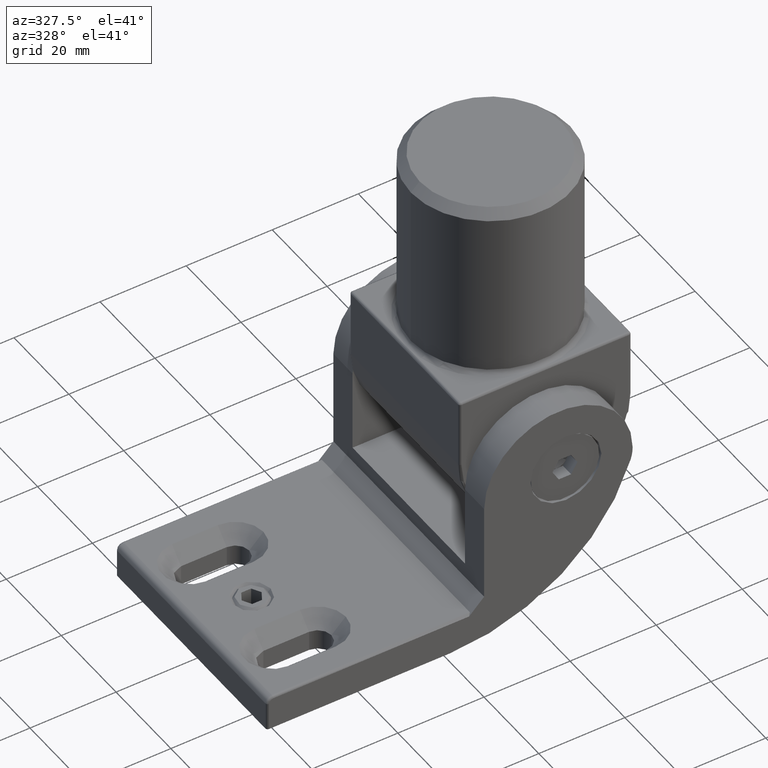
[diagram: clean part render]
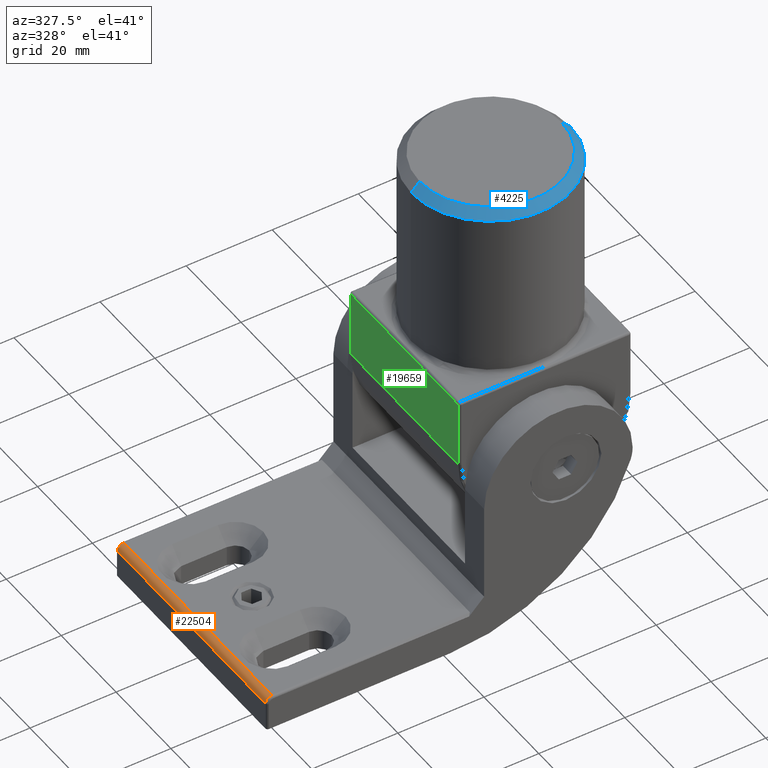
[diagram: same view with three faces highlighted in distinct colors, each labeled with its STEP entity id]
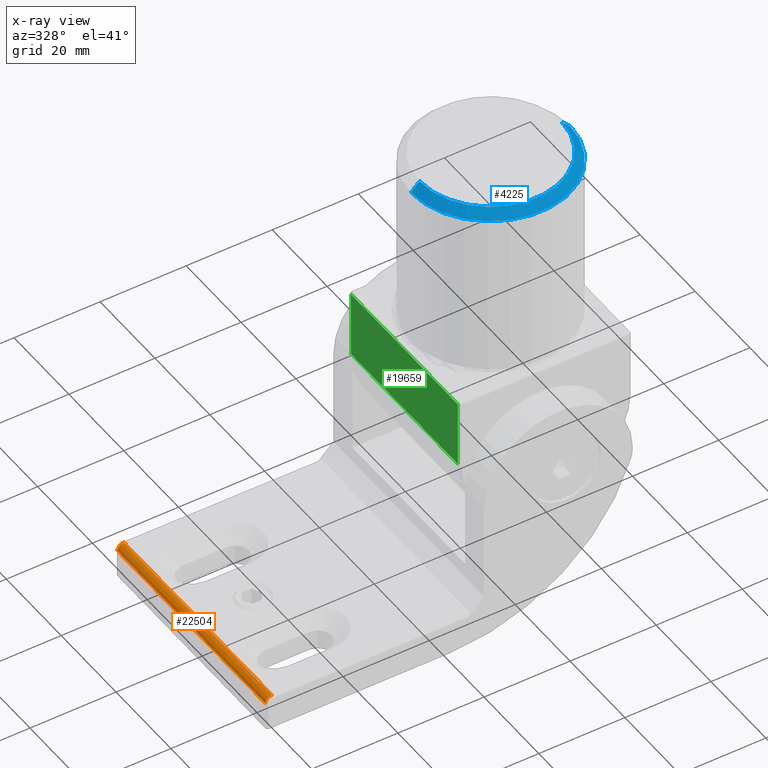
[diagram: x-ray of the same camera — body ghosted, the three highlighted faces saturated]
A machine part, auxiliary view with three faces highlighted in distinct colors.
The next image is the same camera in x-ray (body ghosted, the three faces saturated) — at least one of them is partly hidden behind the body in this view.
Their STEP definitions:

[orange] entity #22504 — the highlighted cylindrical surface (edge-blend (fillet) strip) has radius 1.5 mm, axis along (0, -1, 0).
#1 = ORIENTED_EDGE ( 'NONE', *, *, #22332, .T. ) ;
#961 = ORIENTED_EDGE ( 'NONE', *, *, #15123, .T. ) ;
#1969 = FACE_OUTER_BOUND ( 'NONE', #12444, .T. ) ;
#3238 = EDGE_CURVE ( 'NONE', #9435, #4301, #23183, .T. ) ;
#3796 = ORIENTED_EDGE ( 'NONE', *, *, #3238, .F. ) ;
#4223 = CARTESIAN_POINT ( 'NONE',  ( -41.00000000000000000, 27.50000000000000000, -19.00000000000000000 ) ) ;
#4301 = VERTEX_POINT ( 'NONE', #10152 ) ;
#4660 = DIRECTION ( 'NONE',  ( 0.000000000000000000, 1.000000000000000000, 0.000000000000000000 ) ) ;
#5296 = DIRECTION ( 'NONE',  ( -0.000000000000000000, -1.000000000000000000, -0.000000000000000000 ) ) ;
#6610 = DIRECTION ( 'NONE',  ( 0.000000000000000000, 0.000000000000000000, 1.000000000000000000 ) ) ;
#7519 = AXIS2_PLACEMENT_3D ( 'NONE', #18332, #4660, #6610 ) ;
#7686 = VERTEX_POINT ( 'NONE', #21263 ) ;
#8631 = CARTESIAN_POINT ( 'NONE',  ( -42.50000000000000000, -27.00000000000000000, -19.00000000000000000 ) ) ;
#8645 = DIRECTION ( 'NONE',  ( -0.000000000000000000, 1.000000000000000000, -0.000000000000000000 ) ) ;
#9435 = VERTEX_POINT ( 'NONE', #8631 ) ;
#10031 = AXIS2_PLACEMENT_3D ( 'NONE', #17007, #5296, #20896 ) ;
#10152 = CARTESIAN_POINT ( 'NONE',  ( -42.50000000000000000, 27.00000000000000000, -19.00000000000000000 ) ) ;
#10563 = DIRECTION ( 'NONE',  ( 0.000000000000000000, -1.000000000000000000, 0.000000000000000000 ) ) ;
#11364 = CIRCLE ( 'NONE', #7519, 1.500000000000001332 ) ;
#11649 = VECTOR ( 'NONE', #10563, 1000.000000000000000 ) ;
#11722 = DIRECTION ( 'NONE',  ( 0.000000000000000000, 0.000000000000000000, -1.000000000000000000 ) ) ;
#12340 = CARTESIAN_POINT ( 'NONE',  ( -42.50000000000000000, 27.50000000000000000, -19.00000000000000000 ) ) ;
#12444 = EDGE_LOOP ( 'NONE', ( #3796, #1, #18240, #961 ) ) ;
#13176 = CYLINDRICAL_SURFACE ( 'NONE', #13516, 1.500000000000001332 ) ;
#13280 = CARTESIAN_POINT ( 'NONE',  ( -41.00000000000000000, -27.00000000000000000, -17.49999999999999645 ) ) ;
#13516 = AXIS2_PLACEMENT_3D ( 'NONE', #4223, #17551, #11722 ) ;
#15123 = EDGE_CURVE ( 'NONE', #7686, #4301, #24156, .T. ) ;
#17007 = CARTESIAN_POINT ( 'NONE',  ( -41.00000000000000000, 27.00000000000000000, -19.00000000000000000 ) ) ;
#17551 = DIRECTION ( 'NONE',  ( 0.000000000000000000, -1.000000000000000000, 0.000000000000000000 ) ) ;
#18033 = VECTOR ( 'NONE', #8645, 1000.000000000000000 ) ;
#18240 = ORIENTED_EDGE ( 'NONE', *, *, #22310, .F. ) ;
#18332 = CARTESIAN_POINT ( 'NONE',  ( -41.00000000000000000, -27.00000000000000000, -19.00000000000000000 ) ) ;
#18839 = VERTEX_POINT ( 'NONE', #13280 ) ;
#20272 = CARTESIAN_POINT ( 'NONE',  ( -41.00000000000000000, 27.50000000000000000, -17.49999999999999645 ) ) ;
#20896 = DIRECTION ( 'NONE',  ( 0.000000000000000000, 0.000000000000000000, 1.000000000000000000 ) ) ;
#21263 = CARTESIAN_POINT ( 'NONE',  ( -41.00000000000000000, 27.00000000000000000, -17.49999999999999645 ) ) ;
#22310 = EDGE_CURVE ( 'NONE', #7686, #18839, #22533, .T. ) ;
#22332 = EDGE_CURVE ( 'NONE', #9435, #18839, #11364, .T. ) ;
#22504 = ADVANCED_FACE ( 'NONE', ( #1969 ), #13176, .T. ) ;
#22533 = LINE ( 'NONE', #20272, #11649 ) ;
#23183 = LINE ( 'NONE', #12340, #18033 ) ;
#24156 = CIRCLE ( 'NONE', #10031, 1.500000000000001332 ) ;

[blue] entity #4225 — the highlighted conical surface has half-angle 45 deg.
#3175 = VECTOR ( 'NONE', #14184, 1000.000000000000000 ) ;
#3990 = CARTESIAN_POINT ( 'NONE',  ( -18.50000000000000000, 0.000000000000000000, 39.49999999999996447 ) ) ;
#4225 = ADVANCED_FACE ( 'NONE', ( #6586 ), #4768, .T. ) ;
#4585 = CARTESIAN_POINT ( 'NONE',  ( 16.49999999999997158, 2.020667218593129550E-15, 41.50000000000000000 ) ) ;
#4752 = AXIS2_PLACEMENT_3D ( 'NONE', #18351, #7036, #4932 ) ;
#4768 = CONICAL_SURFACE ( 'NONE', #20162, 16.49999999999997158, 0.7853981633974457255 ) ;
#4888 = VERTEX_POINT ( 'NONE', #3990 ) ;
#4932 = DIRECTION ( 'NONE',  ( 1.000000000000000000, 0.000000000000000000, 0.000000000000000000 ) ) ;
#5301 = LINE ( 'NONE', #16917, #7723 ) ;
#5414 = CARTESIAN_POINT ( 'NONE',  ( 0.000000000000000000, 0.000000000000000000, 41.50000000000000000 ) ) ;
#6188 = DIRECTION ( 'NONE',  ( 0.000000000000000000, 0.000000000000000000, 1.000000000000000000 ) ) ;
#6364 = ORIENTED_EDGE ( 'NONE', *, *, #8892, .F. ) ;
#6586 = FACE_OUTER_BOUND ( 'NONE', #7620, .T. ) ;
#6730 = CARTESIAN_POINT ( 'NONE',  ( 16.49999999999997158, 2.143131898507866276E-15, 41.50000000000000000 ) ) ;
#7036 = DIRECTION ( 'NONE',  ( 0.000000000000000000, 0.000000000000000000, -1.000000000000000000 ) ) ;
#7620 = EDGE_LOOP ( 'NONE', ( #6364, #22423, #19815, #16575 ) ) ;
#7723 = VECTOR ( 'NONE', #17099, 1000.000000000000000 ) ;
#8144 = EDGE_CURVE ( 'NONE', #13295, #4888, #5301, .T. ) ;
#8254 = AXIS2_PLACEMENT_3D ( 'NONE', #17734, #6188, #11986 ) ;
#8892 = EDGE_CURVE ( 'NONE', #17940, #22174, #13725, .T. ) ;
#11986 = DIRECTION ( 'NONE',  ( 1.000000000000000000, 0.000000000000000000, 0.000000000000000000 ) ) ;
#13295 = VERTEX_POINT ( 'NONE', #21393 ) ;
#13725 = LINE ( 'NONE', #4585, #3175 ) ;
#14184 = DIRECTION ( 'NONE',  ( 0.7071067811865456854, 8.659560562354909439E-17, -0.7071067811865493491 ) ) ;
#14236 = EDGE_CURVE ( 'NONE', #13295, #17940, #20818, .T. ) ;
#16575 = ORIENTED_EDGE ( 'NONE', *, *, #18766, .F. ) ;
#16917 = CARTESIAN_POINT ( 'NONE',  ( -16.49999999999997158, 0.000000000000000000, 41.50000000000000000 ) ) ;
#17099 = DIRECTION ( 'NONE',  ( -0.7071067811865456854, 0.000000000000000000, -0.7071067811865493491 ) ) ;
#17734 = CARTESIAN_POINT ( 'NONE',  ( 0.000000000000000000, 0.000000000000000000, 41.50000000000000000 ) ) ;
#17760 = CIRCLE ( 'NONE', #4752, 18.50000000000000000 ) ;
#17906 = CARTESIAN_POINT ( 'NONE',  ( 18.50000000000000000, 2.265596578422603396E-15, 39.49999999999996447 ) ) ;
#17940 = VERTEX_POINT ( 'NONE', #6730 ) ;
#18351 = CARTESIAN_POINT ( 'NONE',  ( 0.000000000000000000, 0.000000000000000000, 39.49999999999996447 ) ) ;
#18766 = EDGE_CURVE ( 'NONE', #22174, #4888, #17760, .T. ) ;
#18928 = DIRECTION ( 'NONE',  ( 0.000000000000000000, 0.000000000000000000, -1.000000000000000000 ) ) ;
#19815 = ORIENTED_EDGE ( 'NONE', *, *, #8144, .T. ) ;
#20162 = AXIS2_PLACEMENT_3D ( 'NONE', #5414, #18928, #22471 ) ;
#20818 = CIRCLE ( 'NONE', #8254, 16.49999999999997158 ) ;
#21393 = CARTESIAN_POINT ( 'NONE',  ( -16.49999999999997158, 0.000000000000000000, 41.50000000000000000 ) ) ;
#22174 = VERTEX_POINT ( 'NONE', #17906 ) ;
#22423 = ORIENTED_EDGE ( 'NONE', *, *, #14236, .F. ) ;
#22471 = DIRECTION ( 'NONE',  ( -1.000000000000000000, 0.000000000000000000, 0.000000000000000000 ) ) ;

[green] entity #19659 — the highlighted planar face has unit normal (1, 0, -0).
#240 = VECTOR ( 'NONE', #8356, 1000.000000000000000 ) ;
#1266 = CARTESIAN_POINT ( 'NONE',  ( -20.00000000000000355, 19.50000000000000000, -15.99999999999999645 ) ) ;
#2692 = PLANE ( 'NONE',  #21236 ) ;
#2964 = CARTESIAN_POINT ( 'NONE',  ( -20.00000000000000355, 19.50000000000000000, -15.99999999999999645 ) ) ;
#3921 = ORIENTED_EDGE ( 'NONE', *, *, #5047, .T. ) ;
#4711 = ORIENTED_EDGE ( 'NONE', *, *, #24898, .T. ) ;
#4817 = LINE ( 'NONE', #14670, #23881 ) ;
#5047 = EDGE_CURVE ( 'NONE', #20888, #7967, #11732, .T. ) ;
#5779 = ORIENTED_EDGE ( 'NONE', *, *, #15586, .T. ) ;
#7967 = VERTEX_POINT ( 'NONE', #10529 ) ;
#8137 = CARTESIAN_POINT ( 'NONE',  ( -20.00000000000000355, -19.50000000000000000, -15.99999999999998934 ) ) ;
#8356 = DIRECTION ( 'NONE',  ( -0.000000000000000000, -1.000000000000000000, -0.000000000000000000 ) ) ;
#8605 = DIRECTION ( 'NONE',  ( 1.000000000000000000, 0.000000000000000000, -2.168404344971010347E-16 ) ) ;
#10529 = CARTESIAN_POINT ( 'NONE',  ( -20.00000000000000355, -19.50000000000000000, -15.99999999999999645 ) ) ;
#10955 = DIRECTION ( 'NONE',  ( -0.000000000000000000, 1.000000000000000000, -0.000000000000000000 ) ) ;
#11626 = CARTESIAN_POINT ( 'NONE',  ( -20.00000000000000000, -19.50000000000000000, -0.4999999999999998890 ) ) ;
#11732 = LINE ( 'NONE', #12143, #240 ) ;
#11880 = LINE ( 'NONE', #8137, #13389 ) ;
#12143 = CARTESIAN_POINT ( 'NONE',  ( -20.00000000000000355, 20.00000000000000000, -15.99999999999999645 ) ) ;
#12248 = CARTESIAN_POINT ( 'NONE',  ( -20.00000000000000000, 19.50000000000000000, -0.4999999999999998890 ) ) ;
#13389 = VECTOR ( 'NONE', #25041, 1000.000000000000000 ) ;
#14670 = CARTESIAN_POINT ( 'NONE',  ( -20.00000000000000000, 20.00000000000000000, -0.5000000000000004441 ) ) ;
#15586 = EDGE_CURVE ( 'NONE', #22252, #20888, #18217, .T. ) ;
#16174 = CARTESIAN_POINT ( 'NONE',  ( -20.00000000000000355, 20.00000000000000000, -15.99999999999998934 ) ) ;
#16323 = VERTEX_POINT ( 'NONE', #11626 ) ;
#16710 = DIRECTION ( 'NONE',  ( -2.168404344971010347E-16, -0.000000000000000000, -1.000000000000000000 ) ) ;
#17478 = EDGE_CURVE ( 'NONE', #16323, #22252, #4817, .T. ) ;
#18217 = LINE ( 'NONE', #1266, #18505 ) ;
#18505 = VECTOR ( 'NONE', #16710, 1000.000000000000000 ) ;
#19659 = ADVANCED_FACE ( 'NONE', ( #21989 ), #2692, .F. ) ;
#20261 = ORIENTED_EDGE ( 'NONE', *, *, #17478, .T. ) ;
#20888 = VERTEX_POINT ( 'NONE', #2964 ) ;
#21236 = AXIS2_PLACEMENT_3D ( 'NONE', #16174, #8605, #24645 ) ;
#21989 = FACE_OUTER_BOUND ( 'NONE', #22171, .T. ) ;
#22171 = EDGE_LOOP ( 'NONE', ( #3921, #4711, #20261, #5779 ) ) ;
#22252 = VERTEX_POINT ( 'NONE', #12248 ) ;
#23881 = VECTOR ( 'NONE', #10955, 1000.000000000000000 ) ;
#24645 = DIRECTION ( 'NONE',  ( -2.168404344971010347E-16, 0.000000000000000000, -1.000000000000000000 ) ) ;
#24898 = EDGE_CURVE ( 'NONE', #7967, #16323, #11880, .T. ) ;
#25041 = DIRECTION ( 'NONE',  ( 2.168404344971010347E-16, -0.000000000000000000, 1.000000000000000000 ) ) ;